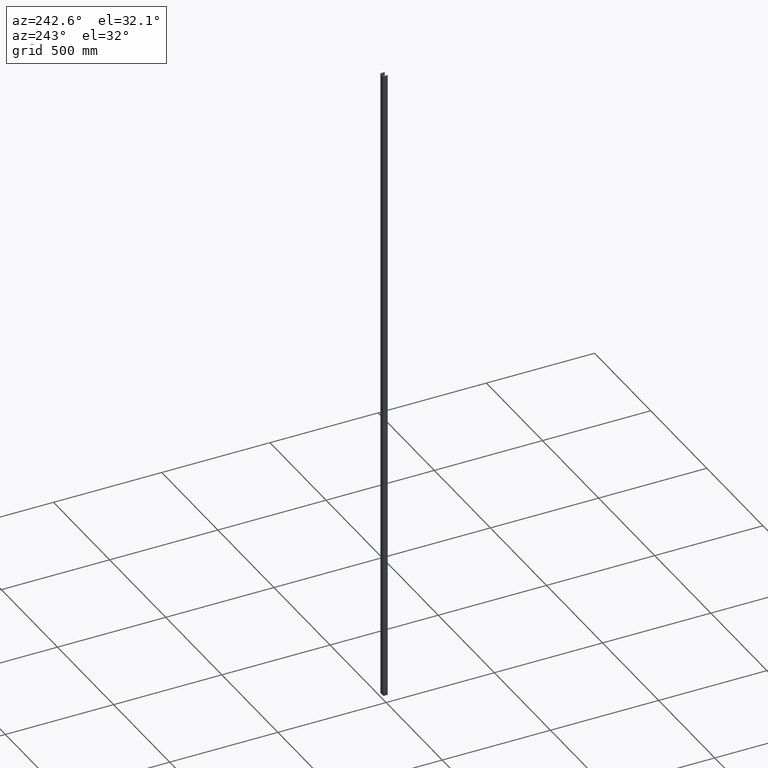
[diagram: clean part render]
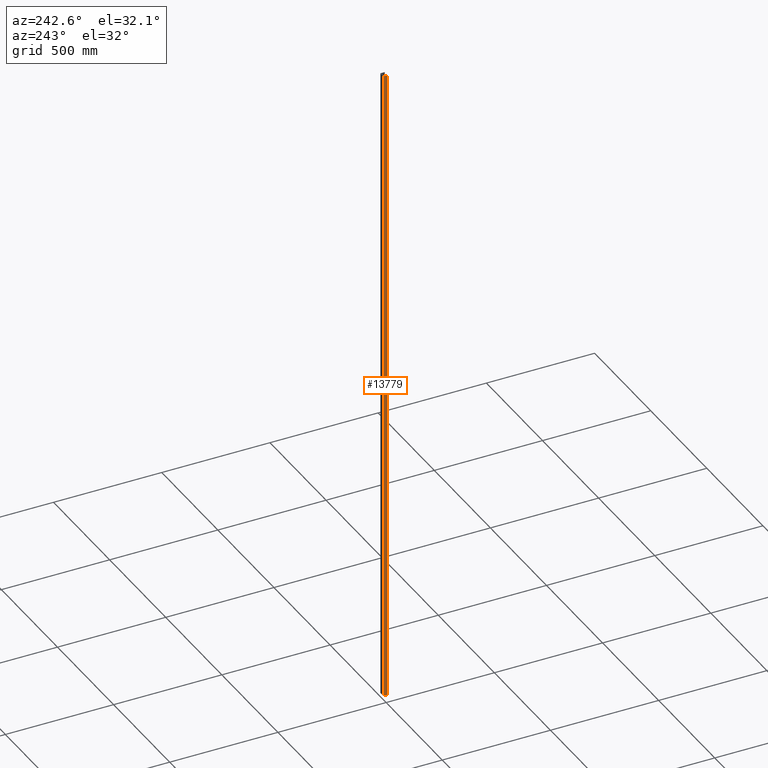
[diagram: same view with one face highlighted and labeled with its STEP entity id]
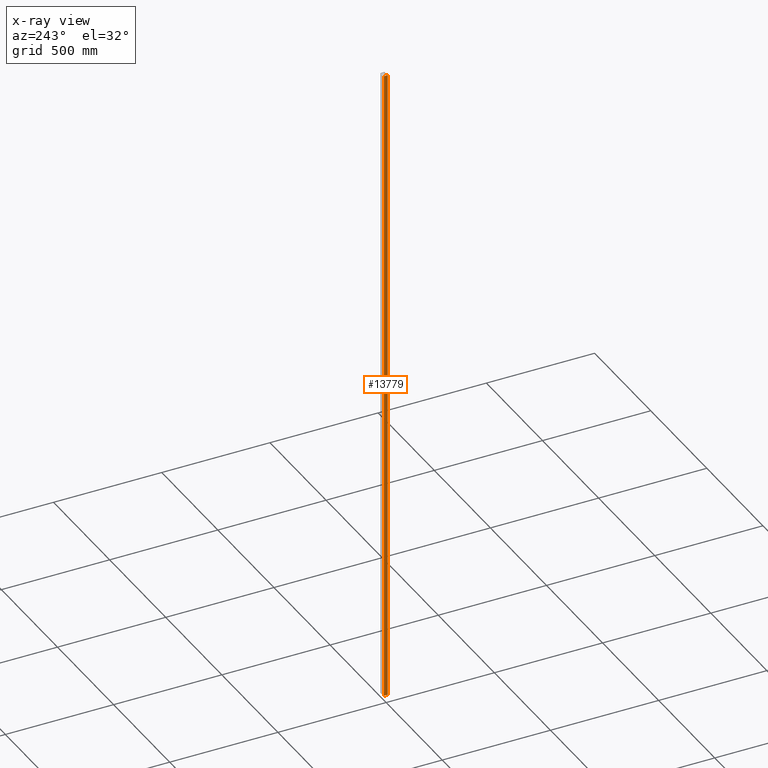
[diagram: x-ray of the same camera — body ghosted, the highlighted face saturated]
A machine part, auxiliary view. The second image highlights one B-rep face of the part: STEP entity #13779.
The next image is the same camera in x-ray: the body ghosted, the highlighted face saturated — about 0% of this face is hidden behind the body in this view.
In plain terms, the highlighted planar face has unit normal (-1, -0, 0).
Its self-contained STEP definition (entity closure, byte-faithful):
#1364 = VERTEX_POINT ( 'NONE', #5631 ) ;
#1975 = CARTESIAN_POINT ( 'NONE',  ( -14.00000000000000000, 0.5000000000000001100, 1500.000000000000000 ) ) ;
#2014 = CARTESIAN_POINT ( 'NONE',  ( -14.00000000000000400, 18.00000000000000400, -1500.000000000000000 ) ) ;
#2357 = CARTESIAN_POINT ( 'NONE',  ( -14.00000000000000000, 0.4999999999999998900, 1500.000000000000000 ) ) ;
#3571 = AXIS2_PLACEMENT_3D ( 'NONE', #6152, #3692, #3640 ) ;
#3640 = DIRECTION ( 'NONE',  ( 1.982541115402065100E-016, -1.000000000000000000, 0.0000000000000000000 ) ) ;
#3656 = DIRECTION ( 'NONE',  ( -1.982541115402065100E-016, 1.000000000000000000, 0.0000000000000000000 ) ) ;
#3676 = CARTESIAN_POINT ( 'NONE',  ( -14.00000000000000400, 18.00000000000000400, 1500.000000000000000 ) ) ;
#3692 = DIRECTION ( 'NONE',  ( -1.000000000000000000, -1.982541115402065100E-016, 0.0000000000000000000 ) ) ;
#3797 = CARTESIAN_POINT ( 'NONE',  ( -14.00000000000000000, 0.4999999999999998900, -1500.000000000000000 ) ) ;
#3798 = FACE_OUTER_BOUND ( 'NONE', #10380, .T. ) ;
#4329 = EDGE_CURVE ( 'NONE', #10140, #14246, #5614, .T. ) ;
#4967 = VECTOR ( 'NONE', #8065, 1000.000000000000000 ) ;
#5081 = DIRECTION ( 'NONE',  ( -0.0000000000000000000, -0.0000000000000000000, -1.000000000000000000 ) ) ;
#5614 = LINE ( 'NONE', #2357, #13539 ) ;
#5631 = CARTESIAN_POINT ( 'NONE',  ( -14.00000000000000000, 0.5000000000000001100, -1500.000000000000000 ) ) ;
#6152 = CARTESIAN_POINT ( 'NONE',  ( -14.00000000000000000, 0.4999999999999998900, 1500.000000000000000 ) ) ;
#7668 = EDGE_CURVE ( 'NONE', #14246, #15147, #14967, .T. ) ;
#8060 = ORIENTED_EDGE ( 'NONE', *, *, #11353, .F. ) ;
#8065 = DIRECTION ( 'NONE',  ( -0.0000000000000000000, -0.0000000000000000000, -1.000000000000000000 ) ) ;
#8557 = CARTESIAN_POINT ( 'NONE',  ( -14.00000000000000000, 0.5000000000000001100, 1500.000000000000000 ) ) ;
#8614 = VECTOR ( 'NONE', #13414, 1000.000000000000000 ) ;
#8846 = ORIENTED_EDGE ( 'NONE', *, *, #4329, .T. ) ;
#10140 = VERTEX_POINT ( 'NONE', #8557 ) ;
#10380 = EDGE_LOOP ( 'NONE', ( #12677, #8060, #8846, #11540 ) ) ;
#11353 = EDGE_CURVE ( 'NONE', #10140, #1364, #14978, .T. ) ;
#11540 = ORIENTED_EDGE ( 'NONE', *, *, #7668, .T. ) ;
#11566 = LINE ( 'NONE', #3797, #8614 ) ;
#11784 = VECTOR ( 'NONE', #5081, 1000.000000000000000 ) ;
#11948 = CARTESIAN_POINT ( 'NONE',  ( -14.00000000000000400, 18.00000000000000400, 1500.000000000000000 ) ) ;
#12449 = EDGE_CURVE ( 'NONE', #1364, #15147, #11566, .T. ) ;
#12677 = ORIENTED_EDGE ( 'NONE', *, *, #12449, .F. ) ;
#13208 = PLANE ( 'NONE',  #3571 ) ;
#13414 = DIRECTION ( 'NONE',  ( -1.982541115402065100E-016, 1.000000000000000000, 0.0000000000000000000 ) ) ;
#13539 = VECTOR ( 'NONE', #3656, 1000.000000000000000 ) ;
#13779 = ADVANCED_FACE ( 'NONE', ( #3798 ), #13208, .T. ) ;
#14246 = VERTEX_POINT ( 'NONE', #3676 ) ;
#14967 = LINE ( 'NONE', #11948, #11784 ) ;
#14978 = LINE ( 'NONE', #1975, #4967 ) ;
#15147 = VERTEX_POINT ( 'NONE', #2014 ) ;